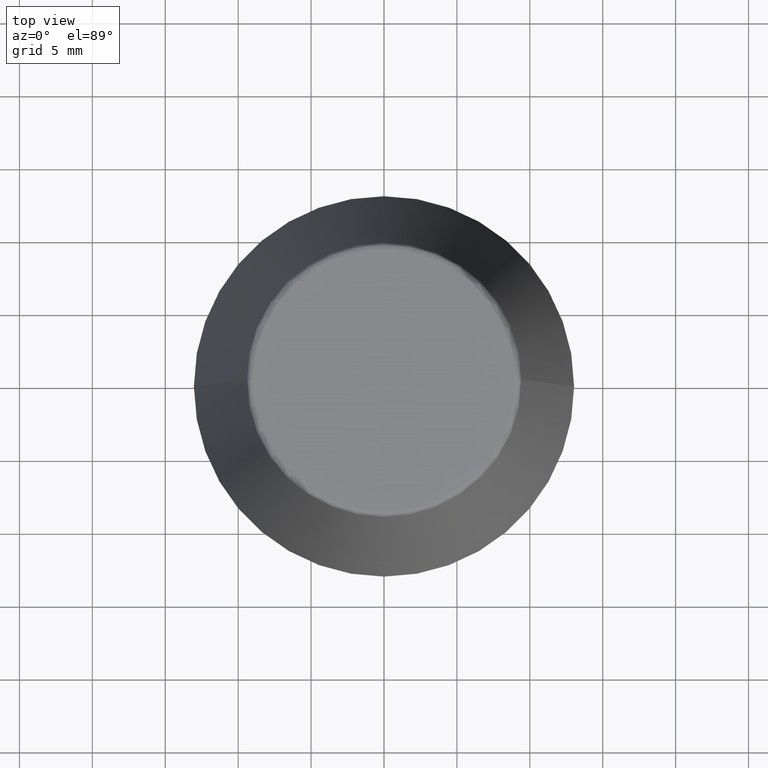
[diagram: clean part render]
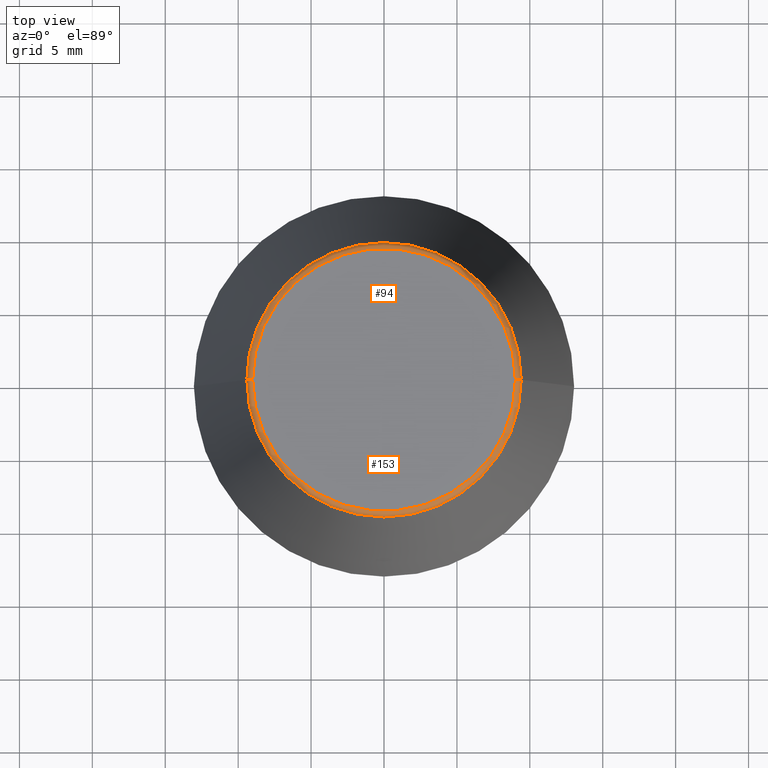
[diagram: same view with one multi-face feature highlighted, each face labeled with its STEP entity id]
A machine part, top view. The highlighted faces form ONE feature: a constant-radius fillet chain: 2 tangent blend faces with common blend radius 0.4 mm. The faces share edges in the B-rep.
Their STEP definitions:
[1] entity #94 (Torus):
#19 = DIRECTION ( 'NONE',  ( -0.0000000000000000000, -0.0000000000000000000, 1.000000000000000000 ) ) ;
#38 = DIRECTION ( 'NONE',  ( 1.000000000000000000, 0.0000000000000000000, 0.0000000000000000000 ) ) ;
#54 = CARTESIAN_POINT ( 'NONE',  ( 9.012603057622234500, 0.0000000000000000000, 33.60000000000000100 ) ) ;
#55 = ORIENTED_EDGE ( 'NONE', *, *, #180, .F. ) ;
#61 = DIRECTION ( 'NONE',  ( 0.0000000000000000000, -1.000000000000000000, 0.0000000000000000000 ) ) ;
#66 = VERTEX_POINT ( 'NONE', #247 ) ;
#72 = EDGE_CURVE ( 'NONE', #269, #66, #200, .T. ) ;
#74 = CIRCLE ( 'NONE', #373, 9.408710285118862900 ) ;
#79 = CIRCLE ( 'NONE', #334, 0.4000000000000010200 ) ;
#81 = VERTEX_POINT ( 'NONE', #172 ) ;
#94 = ADVANCED_FACE ( 'NONE', ( #105 ), #117, .T. ) ;
#105 = FACE_OUTER_BOUND ( 'NONE', #220, .T. ) ;
#106 = DIRECTION ( 'NONE',  ( 1.000000000000000000, 0.0000000000000000000, 0.0000000000000000000 ) ) ;
#111 = CARTESIAN_POINT ( 'NONE',  ( 0.0000000000000000000, 0.0000000000000000000, 33.65566924038402900 ) ) ;
#117 = TOROIDAL_SURFACE ( 'NONE', #283, 9.012603057622234500, 0.4000000000000009700 ) ;
#132 = VERTEX_POINT ( 'NONE', #244 ) ;
#134 = DIRECTION ( 'NONE',  ( 1.000000000000000000, 0.0000000000000000000, 0.0000000000000000000 ) ) ;
#135 = DIRECTION ( 'NONE',  ( 1.224646799147353200E-016, 1.000000000000000000, 0.0000000000000000000 ) ) ;
#143 = DIRECTION ( 'NONE',  ( -0.0000000000000000000, -0.0000000000000000000, 1.000000000000000000 ) ) ;
#149 = DIRECTION ( 'NONE',  ( 0.0000000000000000000, 0.0000000000000000000, -1.000000000000000000 ) ) ;
#150 = EDGE_CURVE ( 'NONE', #269, #81, #74, .T. ) ;
#172 = CARTESIAN_POINT ( 'NONE',  ( -9.408710285118862900, 0.0000000000000000000, 33.65566924038402900 ) ) ;
#178 = CIRCLE ( 'NONE', #362, 9.012603057622234500 ) ;
#180 = EDGE_CURVE ( 'NONE', #66, #132, #178, .T. ) ;
#200 = CIRCLE ( 'NONE', #285, 0.3999999999999975800 ) ;
#220 = EDGE_LOOP ( 'NONE', ( #286, #375, #55, #221 ) ) ;
#221 = ORIENTED_EDGE ( 'NONE', *, *, #72, .F. ) ;
#222 = CARTESIAN_POINT ( 'NONE',  ( 0.0000000000000000000, 0.0000000000000000000, 33.60000000000000100 ) ) ;
#228 = CARTESIAN_POINT ( 'NONE',  ( 9.408710285118862900, 1.374377508408924700E-015, 33.65566924038402900 ) ) ;
#234 = DIRECTION ( 'NONE',  ( -1.000000000000000000, 1.224646799147353200E-016, 0.0000000000000000000 ) ) ;
#236 = EDGE_CURVE ( 'NONE', #81, #132, #79, .T. ) ;
#244 = CARTESIAN_POINT ( 'NONE',  ( -9.012603057622234500, 1.127980121063915600E-015, 34.00000000000000000 ) ) ;
#247 = CARTESIAN_POINT ( 'NONE',  ( 9.012603057622234500, 0.0000000000000000000, 34.00000000000000000 ) ) ;
#269 = VERTEX_POINT ( 'NONE', #228 ) ;
#283 = AXIS2_PLACEMENT_3D ( 'NONE', #222, #19, #134 ) ;
#285 = AXIS2_PLACEMENT_3D ( 'NONE', #54, #61, #149 ) ;
#286 = ORIENTED_EDGE ( 'NONE', *, *, #150, .T. ) ;
#288 = CARTESIAN_POINT ( 'NONE',  ( -9.012603057622234500, 1.103725548650271700E-015, 33.60000000000000100 ) ) ;
#334 = AXIS2_PLACEMENT_3D ( 'NONE', #288, #135, #234 ) ;
#360 = CARTESIAN_POINT ( 'NONE',  ( 0.0000000000000000000, 0.0000000000000000000, 34.00000000000000000 ) ) ;
#362 = AXIS2_PLACEMENT_3D ( 'NONE', #360, #363, #106 ) ;
#363 = DIRECTION ( 'NONE',  ( -0.0000000000000000000, -0.0000000000000000000, 1.000000000000000000 ) ) ;
#373 = AXIS2_PLACEMENT_3D ( 'NONE', #111, #143, #38 ) ;
#375 = ORIENTED_EDGE ( 'NONE', *, *, #236, .T. ) ;
[2] entity #153 (Torus):
#6 = ORIENTED_EDGE ( 'NONE', *, *, #113, .F. ) ;
#34 = CARTESIAN_POINT ( 'NONE',  ( 0.0000000000000000000, 0.0000000000000000000, 33.60000000000000100 ) ) ;
#37 = DIRECTION ( 'NONE',  ( 1.000000000000000000, 0.0000000000000000000, 0.0000000000000000000 ) ) ;
#54 = CARTESIAN_POINT ( 'NONE',  ( 9.012603057622234500, 0.0000000000000000000, 33.60000000000000100 ) ) ;
#61 = DIRECTION ( 'NONE',  ( 0.0000000000000000000, -1.000000000000000000, 0.0000000000000000000 ) ) ;
#66 = VERTEX_POINT ( 'NONE', #247 ) ;
#72 = EDGE_CURVE ( 'NONE', #269, #66, #200, .T. ) ;
#77 = EDGE_LOOP ( 'NONE', ( #151, #187, #326, #6 ) ) ;
#79 = CIRCLE ( 'NONE', #334, 0.4000000000000010200 ) ;
#81 = VERTEX_POINT ( 'NONE', #172 ) ;
#113 = EDGE_CURVE ( 'NONE', #132, #66, #233, .T. ) ;
#132 = VERTEX_POINT ( 'NONE', #244 ) ;
#135 = DIRECTION ( 'NONE',  ( 1.224646799147353200E-016, 1.000000000000000000, 0.0000000000000000000 ) ) ;
#141 = DIRECTION ( 'NONE',  ( 1.000000000000000000, 0.0000000000000000000, 0.0000000000000000000 ) ) ;
#149 = DIRECTION ( 'NONE',  ( 0.0000000000000000000, 0.0000000000000000000, -1.000000000000000000 ) ) ;
#151 = ORIENTED_EDGE ( 'NONE', *, *, #236, .F. ) ;
#153 = ADVANCED_FACE ( 'NONE', ( #327 ), #197, .T. ) ;
#172 = CARTESIAN_POINT ( 'NONE',  ( -9.408710285118862900, 0.0000000000000000000, 33.65566924038402900 ) ) ;
#174 = CARTESIAN_POINT ( 'NONE',  ( 0.0000000000000000000, 0.0000000000000000000, 33.65566924038402900 ) ) ;
#187 = ORIENTED_EDGE ( 'NONE', *, *, #237, .T. ) ;
#197 = TOROIDAL_SURFACE ( 'NONE', #364, 9.012603057622234500, 0.4000000000000009700 ) ;
#200 = CIRCLE ( 'NONE', #285, 0.3999999999999975800 ) ;
#201 = DIRECTION ( 'NONE',  ( 1.000000000000000000, 0.0000000000000000000, 0.0000000000000000000 ) ) ;
#228 = CARTESIAN_POINT ( 'NONE',  ( 9.408710285118862900, 1.374377508408924700E-015, 33.65566924038402900 ) ) ;
#233 = CIRCLE ( 'NONE', #377, 9.012603057622234500 ) ;
#234 = DIRECTION ( 'NONE',  ( -1.000000000000000000, 1.224646799147353200E-016, 0.0000000000000000000 ) ) ;
#236 = EDGE_CURVE ( 'NONE', #81, #132, #79, .T. ) ;
#237 = EDGE_CURVE ( 'NONE', #81, #269, #300, .T. ) ;
#244 = CARTESIAN_POINT ( 'NONE',  ( -9.012603057622234500, 1.127980121063915600E-015, 34.00000000000000000 ) ) ;
#247 = CARTESIAN_POINT ( 'NONE',  ( 9.012603057622234500, 0.0000000000000000000, 34.00000000000000000 ) ) ;
#267 = DIRECTION ( 'NONE',  ( -0.0000000000000000000, -0.0000000000000000000, 1.000000000000000000 ) ) ;
#269 = VERTEX_POINT ( 'NONE', #228 ) ;
#285 = AXIS2_PLACEMENT_3D ( 'NONE', #54, #61, #149 ) ;
#288 = CARTESIAN_POINT ( 'NONE',  ( -9.012603057622234500, 1.103725548650271700E-015, 33.60000000000000100 ) ) ;
#291 = CARTESIAN_POINT ( 'NONE',  ( 0.0000000000000000000, 0.0000000000000000000, 34.00000000000000000 ) ) ;
#300 = CIRCLE ( 'NONE', #312, 9.408710285118862900 ) ;
#310 = DIRECTION ( 'NONE',  ( -0.0000000000000000000, -0.0000000000000000000, 1.000000000000000000 ) ) ;
#312 = AXIS2_PLACEMENT_3D ( 'NONE', #174, #310, #201 ) ;
#326 = ORIENTED_EDGE ( 'NONE', *, *, #72, .T. ) ;
#327 = FACE_OUTER_BOUND ( 'NONE', #77, .T. ) ;
#334 = AXIS2_PLACEMENT_3D ( 'NONE', #288, #135, #234 ) ;
#364 = AXIS2_PLACEMENT_3D ( 'NONE', #34, #366, #37 ) ;
#366 = DIRECTION ( 'NONE',  ( -0.0000000000000000000, -0.0000000000000000000, 1.000000000000000000 ) ) ;
#377 = AXIS2_PLACEMENT_3D ( 'NONE', #291, #267, #141 ) ;